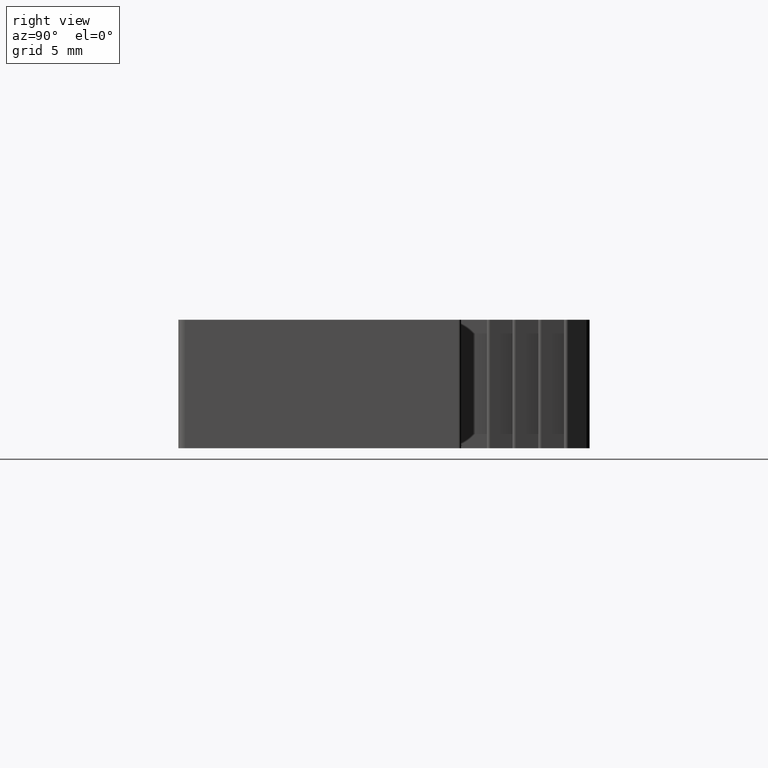
[diagram: clean part render]
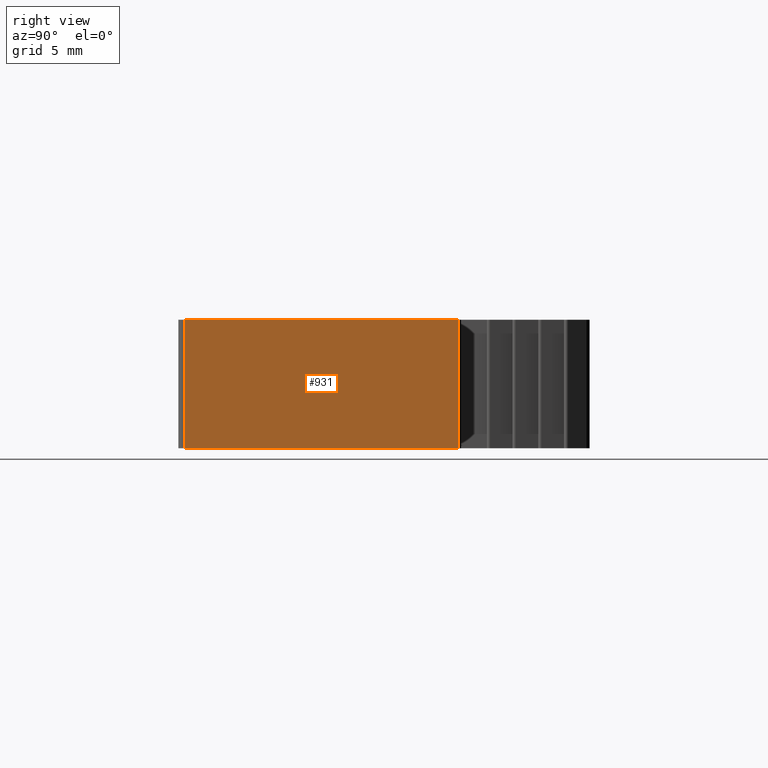
[diagram: same view with one face highlighted and labeled with its STEP entity id]
A machine part, right view. The second image highlights one B-rep face of the part: STEP entity #931.
In plain terms, the highlighted planar face has unit normal (1, 0, 0).
Its self-contained STEP definition (entity closure, byte-faithful):
#43=PLANE('',#1016);
#90=FACE_OUTER_BOUND('',#137,.T.);
#137=EDGE_LOOP('',(#863,#864,#865,#866));
#138=LINE('',#1290,#237);
#143=LINE('',#1302,#242);
#197=LINE('',#1476,#296);
#199=LINE('',#1479,#298);
#237=VECTOR('',#1023,10.);
#242=VECTOR('',#1034,21.3);
#296=VECTOR('',#1162,21.3);
#298=VECTOR('',#1166,10.);
#373=VERTEX_POINT('',#1287);
#374=VERTEX_POINT('',#1289);
#378=VERTEX_POINT('',#1301);
#461=VERTEX_POINT('',#1474);
#463=EDGE_CURVE('',#373,#374,#138,.T.);
#469=EDGE_CURVE('',#378,#374,#143,.T.);
#557=EDGE_CURVE('',#373,#461,#197,.T.);
#559=EDGE_CURVE('',#378,#461,#199,.T.);
#863=ORIENTED_EDGE('',*,*,#463,.F.);
#864=ORIENTED_EDGE('',*,*,#557,.T.);
#865=ORIENTED_EDGE('',*,*,#559,.F.);
#866=ORIENTED_EDGE('',*,*,#469,.T.);
#931=ADVANCED_FACE('',(#90),#43,.T.);
#1016=AXIS2_PLACEMENT_3D('',#1556,#1282,#1283);
#1023=DIRECTION('',(0.,0.,-1.));
#1034=DIRECTION('',(0.,1.,0.));
#1162=DIRECTION('',(0.,-1.,0.));
#1166=DIRECTION('',(0.,0.,1.));
#1282=DIRECTION('center_axis',(1.,0.,0.));
#1283=DIRECTION('ref_axis',(0.,0.,-1.));
#1287=CARTESIAN_POINT('',(23.,5.79999999999999,5.));
#1289=CARTESIAN_POINT('',(23.,5.79999999999999,-5.));
#1290=CARTESIAN_POINT('',(23.,5.79999999999999,0.));
#1301=CARTESIAN_POINT('',(23.,-15.5,-5.));
#1302=CARTESIAN_POINT('',(23.,-16.,-5.));
#1474=CARTESIAN_POINT('',(23.,-15.5,5.));
#1476=CARTESIAN_POINT('',(23.,-16.,5.));
#1479=CARTESIAN_POINT('',(23.,-15.5,0.));
#1556=CARTESIAN_POINT('Origin',(23.,16.,0.));